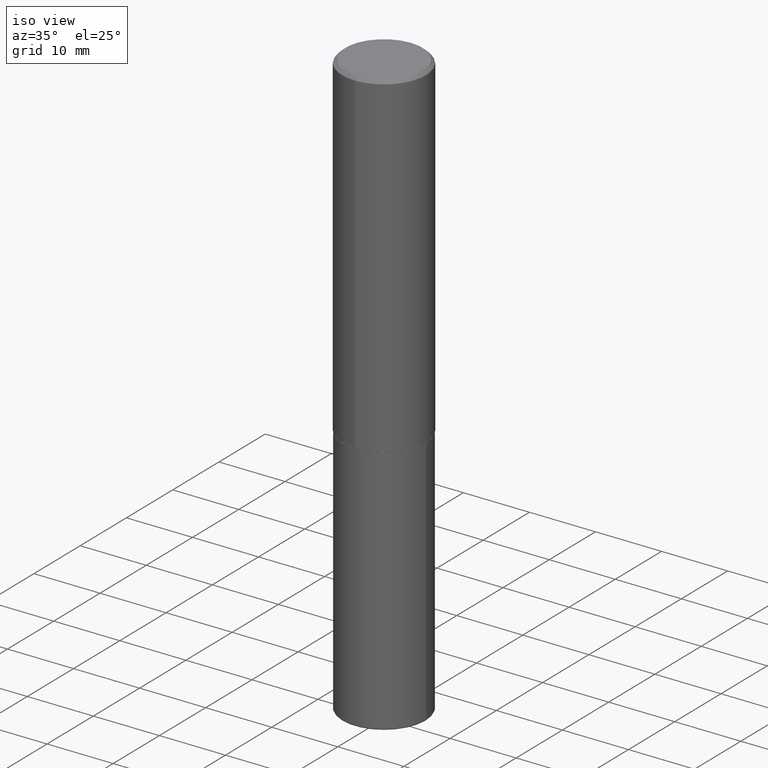
[diagram: clean part render]
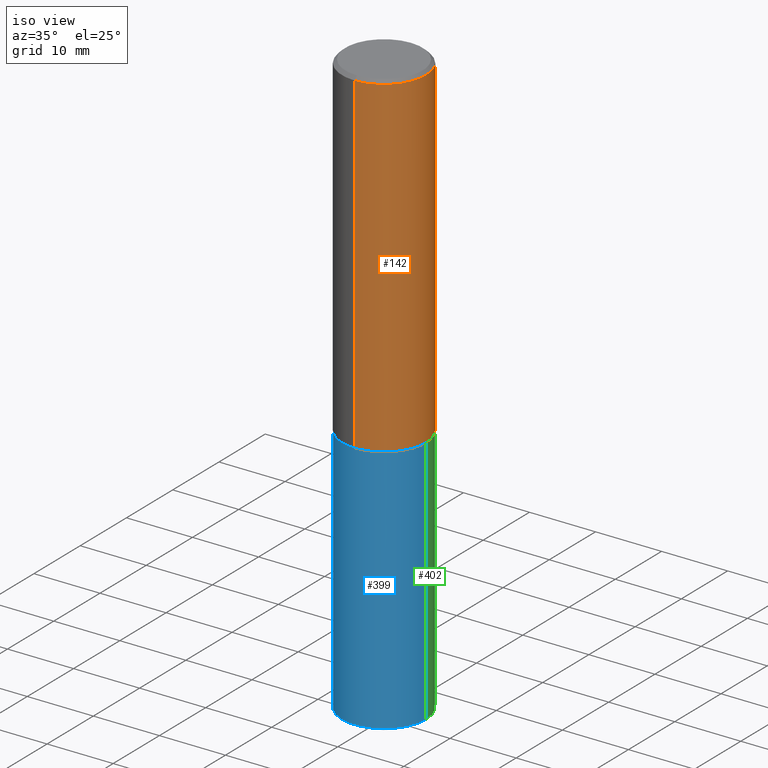
[diagram: same view with three faces highlighted in distinct colors, each labeled with its STEP entity id]
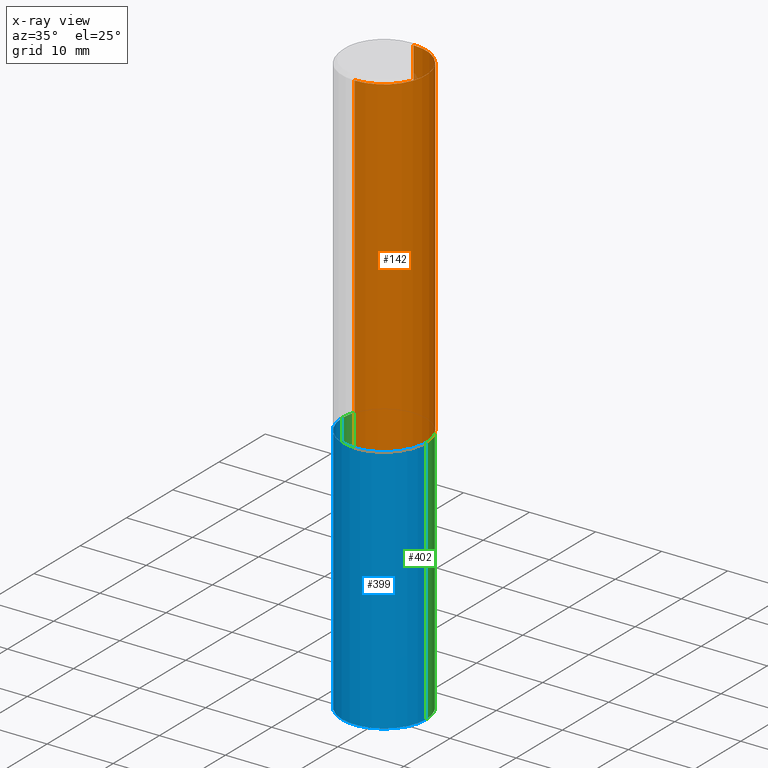
[diagram: x-ray of the same camera — body ghosted, the three highlighted faces saturated]
A machine part, iso view with three faces highlighted in distinct colors.
The next image is the same camera in x-ray (body ghosted, the three faces saturated) — at least one of them is partly hidden behind the body in this view.
Their STEP definitions:

[orange] entity #142 — the highlighted cylindrical surface (partial cylindrical patch) has radius 6.35 mm, axis along (-0, 0, 1).
#6 = LINE ( 'NONE', #312, #364 ) ;
#9 = VECTOR ( 'NONE', #395, 39.37007874015748143 ) ;
#11 = DIRECTION ( 'NONE',  ( -6.982962677686265922E-15, -1.000000000000000000, 3.483106191921935554E-15 ) ) ;
#14 = ORIENTED_EDGE ( 'NONE', *, *, #224, .T. ) ;
#16 = EDGE_CURVE ( 'NONE', #307, #358, #128, .T. ) ;
#36 = AXIS2_PLACEMENT_3D ( 'NONE', #262, #294, #11 ) ;
#40 = LINE ( 'NONE', #392, #9 ) ;
#43 = ORIENTED_EDGE ( 'NONE', *, *, #323, .F. ) ;
#66 = CARTESIAN_POINT ( 'NONE',  ( -1.745740669421519543E-15, -0.2500000000000072164, -1.998999999999998778 ) ) ;
#98 = CARTESIAN_POINT ( 'NONE',  ( 1.745740669421566875E-15, 0.2499999999999999167, -0.02000000000000092676 ) ) ;
#103 = CARTESIAN_POINT ( 'NONE',  ( 4.889028629390535480E-29, -6.978702918109095527E-15, -1.998999999999999666 ) ) ;
#113 = DIRECTION ( 'NONE',  ( -2.445737183286911680E-29, 3.491097007558327602E-15, 1.000000000000000000 ) ) ;
#118 = CARTESIAN_POINT ( 'NONE',  ( 0.000000000000000000, 0.000000000000000000, 0.000000000000000000 ) ) ;
#128 = CIRCLE ( 'NONE', #36, 0.2500000000000000000 ) ;
#139 = CARTESIAN_POINT ( 'NONE',  ( -1.715124499442882299E-15, -0.2500000000000000555, -0.01999999999999918510 ) ) ;
#142 = ADVANCED_FACE ( 'NONE', ( #274 ), #410, .T. ) ;
#184 = AXIS2_PLACEMENT_3D ( 'NONE', #118, #113, #214 ) ;
#214 = DIRECTION ( 'NONE',  ( -6.982962677686266711E-15, -1.000000000000000000, 3.491097007558327996E-15 ) ) ;
#224 = EDGE_CURVE ( 'NONE', #390, #358, #40, .T. ) ;
#229 = DIRECTION ( 'NONE',  ( -2.445737183286911680E-29, 3.491097007558327602E-15, 1.000000000000000000 ) ) ;
#235 = AXIS2_PLACEMENT_3D ( 'NONE', #103, #229, #357 ) ;
#243 = EDGE_CURVE ( 'NONE', #249, #390, #280, .T. ) ;
#249 = VERTEX_POINT ( 'NONE', #66 ) ;
#252 = DIRECTION ( 'NONE',  ( -2.445737183286911680E-29, 3.491097007558327602E-15, 1.000000000000000000 ) ) ;
#262 = CARTESIAN_POINT ( 'NONE',  ( 4.891474366573836672E-31, -6.982194015116674235E-17, -0.02000000000000005593 ) ) ;
#264 = ORIENTED_EDGE ( 'NONE', *, *, #16, .F. ) ;
#274 = FACE_OUTER_BOUND ( 'NONE', #288, .T. ) ;
#280 = CIRCLE ( 'NONE', #235, 0.2500000000000002776 ) ;
#288 = EDGE_LOOP ( 'NONE', ( #295, #14, #264, #43 ) ) ;
#294 = DIRECTION ( 'NONE',  ( -2.445737183286911680E-29, 3.491097007558327602E-15, 1.000000000000000000 ) ) ;
#295 = ORIENTED_EDGE ( 'NONE', *, *, #243, .T. ) ;
#299 = CARTESIAN_POINT ( 'NONE',  ( 1.776356839400276103E-15, 0.2499999999999933109, -1.999000000000000554 ) ) ;
#307 = VERTEX_POINT ( 'NONE', #139 ) ;
#312 = CARTESIAN_POINT ( 'NONE',  ( -1.745740669421567467E-15, -0.2500000000000001110, 8.727742518895823935E-16 ) ) ;
#323 = EDGE_CURVE ( 'NONE', #249, #307, #6, .T. ) ;
#357 = DIRECTION ( 'NONE',  ( -6.982962677686265922E-15, -1.000000000000000000, 3.278217592397112312E-15 ) ) ;
#358 = VERTEX_POINT ( 'NONE', #98 ) ;
#364 = VECTOR ( 'NONE', #252, 39.37007874015748143 ) ;
#390 = VERTEX_POINT ( 'NONE', #299 ) ;
#392 = CARTESIAN_POINT ( 'NONE',  ( 1.776356839400251254E-15, 0.2500000000000001110, -8.727742518895823935E-16 ) ) ;
#395 = DIRECTION ( 'NONE',  ( -2.445737183286911680E-29, 3.491097007558327602E-15, 1.000000000000000000 ) ) ;
#410 = CYLINDRICAL_SURFACE ( 'NONE', #184, 0.2500000000000001110 ) ;

[blue] entity #399 — the highlighted cylindrical surface (partial cylindrical patch) has radius 6.35 mm, axis along (-0, 0, 1).
#34 = LINE ( 'NONE', #256, #313 ) ;
#39 = EDGE_LOOP ( 'NONE', ( #354, #349, #134, #111 ) ) ;
#57 = DIRECTION ( 'NONE',  ( -2.445468806185136597E-29, 3.491481338843145583E-15, 1.000000000000000000 ) ) ;
#58 = EDGE_CURVE ( 'NONE', #238, #401, #365, .T. ) ;
#65 = EDGE_CURVE ( 'NONE', #230, #136, #173, .T. ) ;
#81 = CARTESIAN_POINT ( 'NONE',  ( 0.2500000000000000555, -1.393101054198414122E-14, -3.489999999999999325 ) ) ;
#100 = AXIS2_PLACEMENT_3D ( 'NONE', #202, #268, #403 ) ;
#111 = ORIENTED_EDGE ( 'NONE', *, *, #58, .F. ) ;
#134 = ORIENTED_EDGE ( 'NONE', *, *, #154, .T. ) ;
#136 = VERTEX_POINT ( 'NONE', #81 ) ;
#151 = AXIS2_PLACEMENT_3D ( 'NONE', #334, #210, #208 ) ;
#154 = EDGE_CURVE ( 'NONE', #136, #401, #248, .T. ) ;
#173 = CIRCLE ( 'NONE', #254, 0.2500000000000000000 ) ;
#178 = VECTOR ( 'NONE', #242, 39.37007874015748143 ) ;
#182 = DIRECTION ( 'NONE',  ( 1.000000000000000000, -6.982962677686270655E-15, 0.000000000000000000 ) ) ;
#202 = CARTESIAN_POINT ( 'NONE',  ( 0.000000000000000000, 0.000000000000000000, 0.000000000000000000 ) ) ;
#208 = DIRECTION ( 'NONE',  ( 1.000000000000000000, -6.982962677686266711E-15, 0.000000000000000000 ) ) ;
#210 = DIRECTION ( 'NONE',  ( -2.445468806185136597E-29, 3.491481338843145583E-15, 1.000000000000000000 ) ) ;
#217 = EDGE_CURVE ( 'NONE', #230, #238, #34, .T. ) ;
#218 = CARTESIAN_POINT ( 'NONE',  ( 8.534686133586125422E-29, -1.218526987256257454E-14, -3.489999999999999325 ) ) ;
#230 = VERTEX_POINT ( 'NONE', #388 ) ;
#232 = DIRECTION ( 'NONE',  ( -2.445468806185136877E-29, 3.491481338843145188E-15, 1.000000000000000000 ) ) ;
#238 = VERTEX_POINT ( 'NONE', #284 ) ;
#242 = DIRECTION ( 'NONE',  ( -2.445468806185136877E-29, 3.491481338843145188E-15, 1.000000000000000000 ) ) ;
#248 = LINE ( 'NONE', #279, #178 ) ;
#254 = AXIS2_PLACEMENT_3D ( 'NONE', #218, #57, #182 ) ;
#256 = CARTESIAN_POINT ( 'NONE',  ( -0.2500000000000000000, 1.776356839400250465E-15, -1.229733772563726445E-29 ) ) ;
#268 = DIRECTION ( 'NONE',  ( -2.445468806185136597E-29, 3.491481338843145583E-15, 1.000000000000000000 ) ) ;
#269 = CYLINDRICAL_SURFACE ( 'NONE', #100, 0.2500000000000000000 ) ;
#279 = CARTESIAN_POINT ( 'NONE',  ( 0.2500000000000000000, -1.745740669421566678E-15, 1.219044193948983948E-29 ) ) ;
#284 = CARTESIAN_POINT ( 'NONE',  ( -0.2500000000000000000, -7.807759435724181203E-15, -1.999999999999999778 ) ) ;
#313 = VECTOR ( 'NONE', #232, 39.37007874015748143 ) ;
#334 = CARTESIAN_POINT ( 'NONE',  ( 4.890937612370272633E-29, -6.982962677686290376E-15, -1.999999999999999778 ) ) ;
#349 = ORIENTED_EDGE ( 'NONE', *, *, #65, .T. ) ;
#354 = ORIENTED_EDGE ( 'NONE', *, *, #217, .F. ) ;
#361 = CARTESIAN_POINT ( 'NONE',  ( 0.2500000000000000000, -8.728703347107857054E-15, -1.999999999999999778 ) ) ;
#365 = CIRCLE ( 'NONE', #151, 0.2500000000000000000 ) ;
#388 = CARTESIAN_POINT ( 'NONE',  ( -0.2500000000000000555, -1.040891303316232250E-14, -3.489999999999999325 ) ) ;
#397 = FACE_OUTER_BOUND ( 'NONE', #39, .T. ) ;
#399 = ADVANCED_FACE ( 'NONE', ( #397 ), #269, .T. ) ;
#401 = VERTEX_POINT ( 'NONE', #361 ) ;
#403 = DIRECTION ( 'NONE',  ( 1.000000000000000000, -6.982962677686266711E-15, 4.876176775795935793E-29 ) ) ;

[green] entity #402 — the highlighted cylindrical surface (partial cylindrical patch) has radius 6.35 mm, axis along (-0, 0, 1).
#15 = CIRCLE ( 'NONE', #220, 0.2500000000000000000 ) ;
#25 = CARTESIAN_POINT ( 'NONE',  ( 4.890937612370272633E-29, -6.982962677686290376E-15, -1.999999999999999778 ) ) ;
#34 = LINE ( 'NONE', #256, #313 ) ;
#49 = EDGE_LOOP ( 'NONE', ( #241, #316, #289, #396 ) ) ;
#73 = DIRECTION ( 'NONE',  ( -2.445468806185136597E-29, 3.491481338843145583E-15, 1.000000000000000000 ) ) ;
#77 = CIRCLE ( 'NONE', #140, 0.2500000000000000000 ) ;
#81 = CARTESIAN_POINT ( 'NONE',  ( 0.2500000000000000555, -1.393101054198414122E-14, -3.489999999999999325 ) ) ;
#136 = VERTEX_POINT ( 'NONE', #81 ) ;
#140 = AXIS2_PLACEMENT_3D ( 'NONE', #199, #324, #327 ) ;
#144 = DIRECTION ( 'NONE',  ( 1.000000000000000000, -6.982962677686266711E-15, 4.876176775795935793E-29 ) ) ;
#149 = EDGE_CURVE ( 'NONE', #401, #238, #15, .T. ) ;
#154 = EDGE_CURVE ( 'NONE', #136, #401, #248, .T. ) ;
#159 = DIRECTION ( 'NONE',  ( -2.445468806185136597E-29, 3.491481338843145583E-15, 1.000000000000000000 ) ) ;
#178 = VECTOR ( 'NONE', #242, 39.37007874015748143 ) ;
#199 = CARTESIAN_POINT ( 'NONE',  ( 8.534686133586125422E-29, -1.218526987256257454E-14, -3.489999999999999325 ) ) ;
#217 = EDGE_CURVE ( 'NONE', #230, #238, #34, .T. ) ;
#220 = AXIS2_PLACEMENT_3D ( 'NONE', #25, #159, #407 ) ;
#230 = VERTEX_POINT ( 'NONE', #388 ) ;
#232 = DIRECTION ( 'NONE',  ( -2.445468806185136877E-29, 3.491481338843145188E-15, 1.000000000000000000 ) ) ;
#237 = FACE_OUTER_BOUND ( 'NONE', #49, .T. ) ;
#238 = VERTEX_POINT ( 'NONE', #284 ) ;
#241 = ORIENTED_EDGE ( 'NONE', *, *, #417, .T. ) ;
#242 = DIRECTION ( 'NONE',  ( -2.445468806185136877E-29, 3.491481338843145188E-15, 1.000000000000000000 ) ) ;
#248 = LINE ( 'NONE', #279, #178 ) ;
#256 = CARTESIAN_POINT ( 'NONE',  ( -0.2500000000000000000, 1.776356839400250465E-15, -1.229733772563726445E-29 ) ) ;
#263 = CYLINDRICAL_SURFACE ( 'NONE', #400, 0.2500000000000000000 ) ;
#279 = CARTESIAN_POINT ( 'NONE',  ( 0.2500000000000000000, -1.745740669421566678E-15, 1.219044193948983948E-29 ) ) ;
#284 = CARTESIAN_POINT ( 'NONE',  ( -0.2500000000000000000, -7.807759435724181203E-15, -1.999999999999999778 ) ) ;
#289 = ORIENTED_EDGE ( 'NONE', *, *, #149, .F. ) ;
#313 = VECTOR ( 'NONE', #232, 39.37007874015748143 ) ;
#316 = ORIENTED_EDGE ( 'NONE', *, *, #217, .T. ) ;
#324 = DIRECTION ( 'NONE',  ( -2.445468806185136597E-29, 3.491481338843145583E-15, 1.000000000000000000 ) ) ;
#327 = DIRECTION ( 'NONE',  ( 1.000000000000000000, -6.982962677686270655E-15, 0.000000000000000000 ) ) ;
#359 = CARTESIAN_POINT ( 'NONE',  ( 0.000000000000000000, 0.000000000000000000, 0.000000000000000000 ) ) ;
#361 = CARTESIAN_POINT ( 'NONE',  ( 0.2500000000000000000, -8.728703347107857054E-15, -1.999999999999999778 ) ) ;
#388 = CARTESIAN_POINT ( 'NONE',  ( -0.2500000000000000555, -1.040891303316232250E-14, -3.489999999999999325 ) ) ;
#396 = ORIENTED_EDGE ( 'NONE', *, *, #154, .F. ) ;
#400 = AXIS2_PLACEMENT_3D ( 'NONE', #359, #73, #144 ) ;
#401 = VERTEX_POINT ( 'NONE', #361 ) ;
#402 = ADVANCED_FACE ( 'NONE', ( #237 ), #263, .T. ) ;
#407 = DIRECTION ( 'NONE',  ( 1.000000000000000000, -6.982962677686266711E-15, 0.000000000000000000 ) ) ;
#417 = EDGE_CURVE ( 'NONE', #136, #230, #77, .T. ) ;